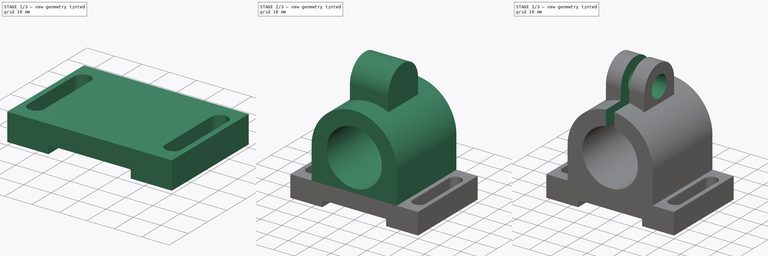
[diagram: build sequence overview — one tinted view per stage of 3, left to right]
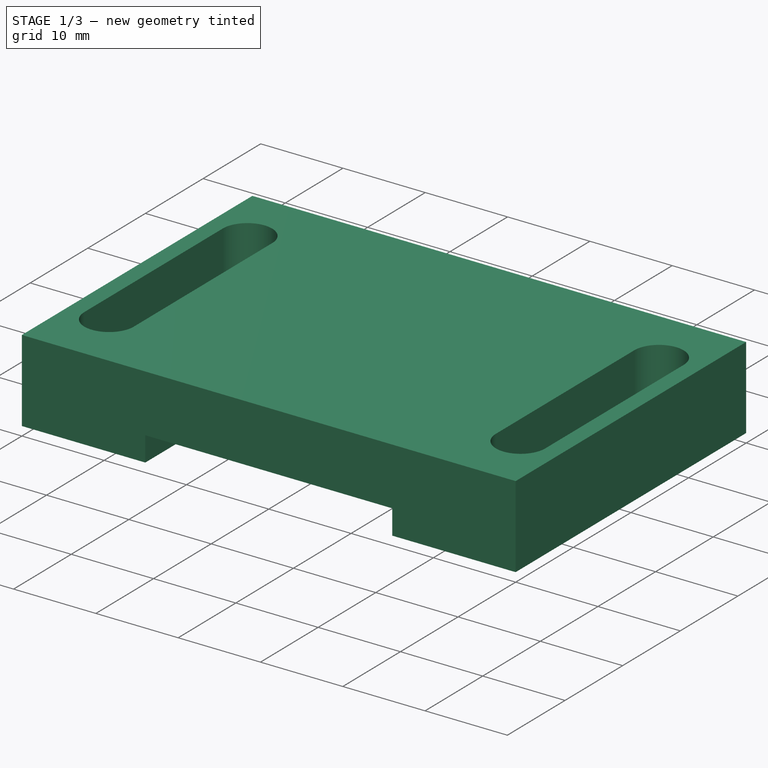
[diagram: stage 1 of 3 — iso view after this stage's code; geometry added in this stage tinted green]
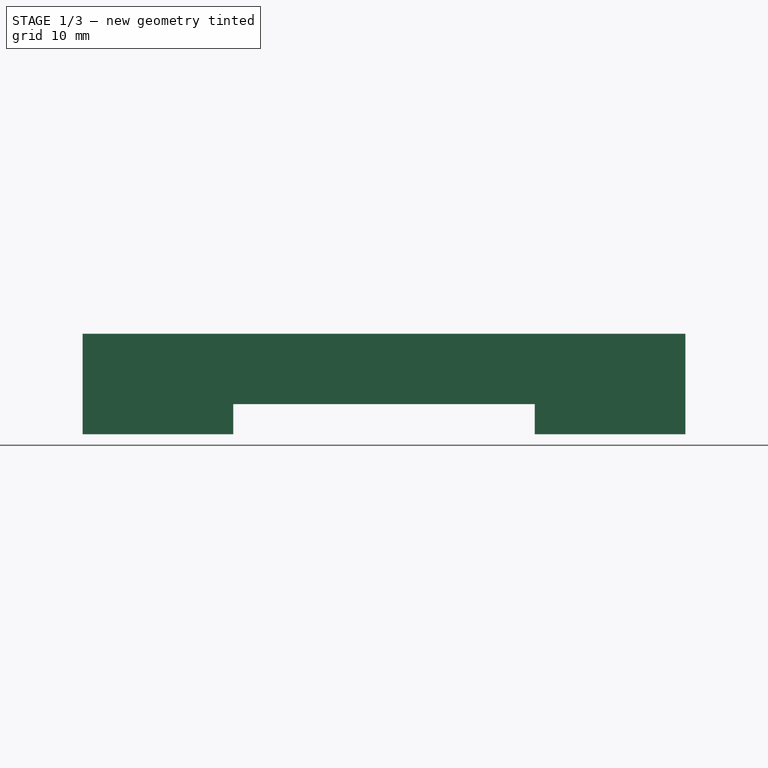
[diagram: stage 1 of 3 — front view after this stage's code; geometry added in this stage tinted green]
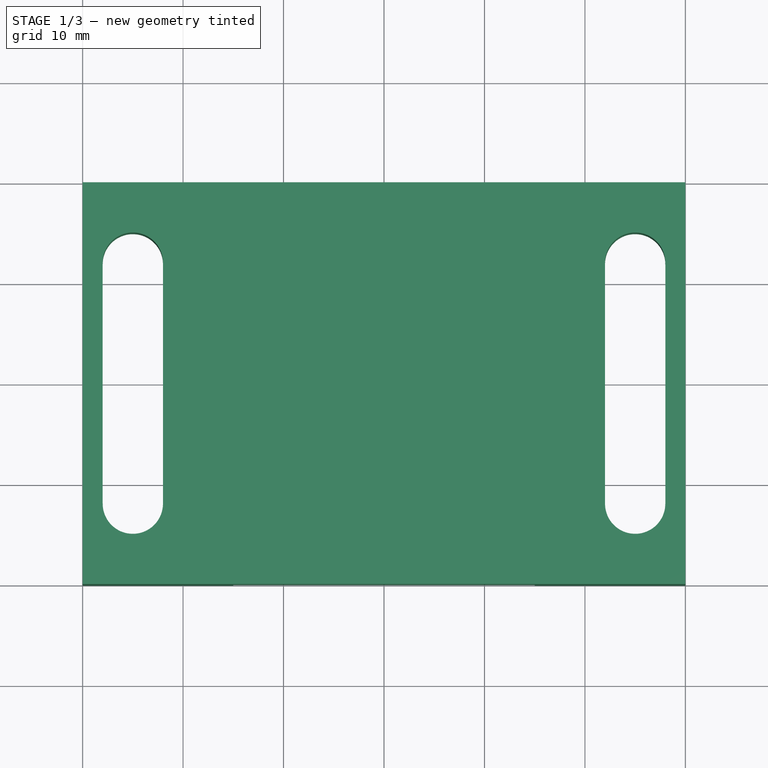
[diagram: stage 1 of 3 — top view after this stage's code; geometry added in this stage tinted green]
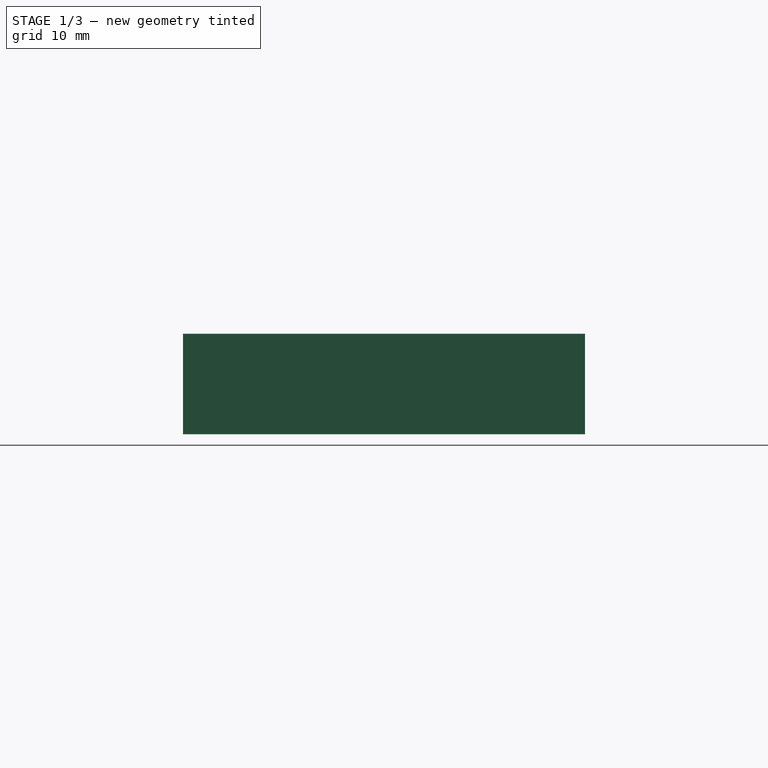
[diagram: stage 1 of 3 — right view after this stage's code; geometry added in this stage tinted green]
FCSTD DOCUMENT  (FreeCAD 0.18R4 (GitTag))
Label: FreeCadFile
License: All rights reserved
LicenseURL: http://en.wikipedia.org/wiki/All_rights_reserved
objects: Sketcher::SketchObject×8, PartDesign::Plane×6, PartDesign::Pocket×5, PartDesign::Pad×2, PartDesign::Body×1
note: 29 computed .brp shape members not serialized (recipe doc carries the construction recipe); baked Part::Feature solids carry a one-line shape summary decoded from their .brp

FEATURE [Sketcher::SketchObject] Sketch001
  MapMode = 5
  Support = -> [XY_Plane001]
  sketch-geometry (4):
    g0: LineSegment StartX=30 StartY=-20 StartZ=0 EndX=30 EndY=20 EndZ=0
    g1: LineSegment StartX=-30 StartY=20 StartZ=0 EndX=-30 EndY=-20 EndZ=0
    g2: LineSegment StartX=-30 StartY=20 StartZ=0 EndX=30 EndY=20 EndZ=0
    g3: LineSegment StartX=-30 StartY=-20 StartZ=0 EndX=30 EndY=-20 EndZ=0
  constraints (9):
    c: DistanceX(g1,g0) = 60
    c: DistanceY(g0,g0) = 40
    c: Symmetric(g1,g0,g-2)
    c: Symmetric(g1,g1,g-1)
    c: Coincident(g2,g0)
    c: Coincident(g2,g1)
    c: Coincident(g0,g3)
    c: Coincident(g1,g3)
    c: Symmetric(g0,g0,g-1)
FEATURE [PartDesign::Plane] DatumPlane
  Length = 69.798
  MapMode = 5
  Placement = pos=(0,0,0) rot=(1,0,0;3.14159rad)
  ResizeMode = 0
  Width = 49.798
FEATURE [Sketcher::SketchObject] Sketch
  MapMode = 5
  Placement = pos=(0,0,0) rot=(1,0,0;3.14159rad)
  Support = -> [DatumPlane]
  sketch-geometry (4):
    g0: LineSegment StartX=-15 StartY=-20 StartZ=0 EndX=15 EndY=-20 EndZ=0
    g1: LineSegment StartX=15 StartY=-20 StartZ=0 EndX=15 EndY=20 EndZ=0
    g2: LineSegment StartX=15 StartY=20 StartZ=0 EndX=-15 EndY=20 EndZ=0
    g3: LineSegment StartX=-15 StartY=20 StartZ=0 EndX=-15 EndY=-20 EndZ=0
  constraints (10):
    c: Coincident(g0,g1)
    c: Coincident(g1,g2)
    c: Coincident(g2,g3)
    c: Coincident(g3,g0)
    c: Horizontal(g0)
    c: Vertical(g3)
    c: DistanceX(g2,g2) = 30
    c: DistanceY(g1,g1) = 40
    c: Symmetric(g1,g0,g-1)
    c: Symmetric(g2,g1,g-2)
FEATURE [PartDesign::Pocket] Pocket
  Length = 3
  Length2 = 100
  Profile = -> Sketch
  Type = 0
FEATURE [PartDesign::Plane] DatumPlane001
  Length = 69.798
  MapMode = 5
  Placement = pos=(0,0,10) rot=(0,0,1;0rad)
  ResizeMode = 0
  Support = -> [Pocket]
  Width = 49.798
FEATURE [Sketcher::SketchObject] Sketch005
  MapMode = 5
  Placement = pos=(0,0,10) rot=(0,0,1;0rad)
  Support = -> [DatumPlane001]
  sketch-geometry (8):
    g0: LineSegment StartX=-28 StartY=12 StartZ=0 EndX=-28 EndY=-12 EndZ=0
    g1: LineSegment StartX=-22 StartY=12 StartZ=0 EndX=-22 EndY=-12 EndZ=0
    g2: ArcOfCircle CenterX=-25 CenterY=12 CenterZ=0 NormalX=0 NormalY=0 NormalZ=1 AngleXU=0 Radius=3 StartAngle=0 EndAngle=3.14159
    g3: ArcOfCircle CenterX=-25 CenterY=-12 CenterZ=0 NormalX=0 NormalY=0 NormalZ=1 AngleXU=0 Radius=3 StartAngle=3.14159 EndAngle=6.28319
    g4: LineSegment StartX=22 StartY=12 StartZ=0 EndX=22 EndY=-12 EndZ=0
    g5: LineSegment StartX=28 StartY=12 StartZ=0 EndX=28 EndY=-12 EndZ=0
    g6: ArcOfCircle CenterX=25 CenterY=12 CenterZ=0 NormalX=0 NormalY=0 NormalZ=1 AngleXU=0 Radius=3 StartAngle=2e-16 EndAngle=3.14159
    g7: ArcOfCircle CenterX=25 CenterY=-12 CenterZ=0 NormalX=0 NormalY=0 NormalZ=1 AngleXU=0 Radius=3 StartAngle=3.14159 EndAngle=6.28319
  constraints (22):
    c: DistanceY(g0,g0) = 24
    c: Symmetric(g0,g0,g-1)
    c: Equal(g0,g1) = 24
    c: DistanceX(g0,g1) = 6
    c: Symmetric(g1,g1,g-1)
    c: Tangent(g2,g0) = -1.5708
    c: Coincident(g2,g1)
    c: Coincident(g3,g0)
    c: Coincident(g3,g1)
    c: Tangent(g1,g3) = 1.5708
    c: DistanceX(g2,g-1) = 25
    c: Equal(g0,g4) = 24
    c: Equal(g4,g5) = 24
    c: Tangent(g6,g4) = -1.5708
    c: Coincident(g6,g5)
    c: Coincident(g7,g4)
    c: Coincident(g7,g5)
    c: Tangent(g5,g7) = 1.5708
    c: Symmetric(g6,g2,g-2)
    c: Symmetric(g4,g1,g-2)
    c: Symmetric(g4,g1,g-2)
    c: Symmetric(g5,g0,g-2)
FEATURE [PartDesign::Pocket] Pocket001
  BaseFeature = -> Pocket
  Length = 5
  Length2 = 100
  Profile = -> Sketch005
  Type = 1
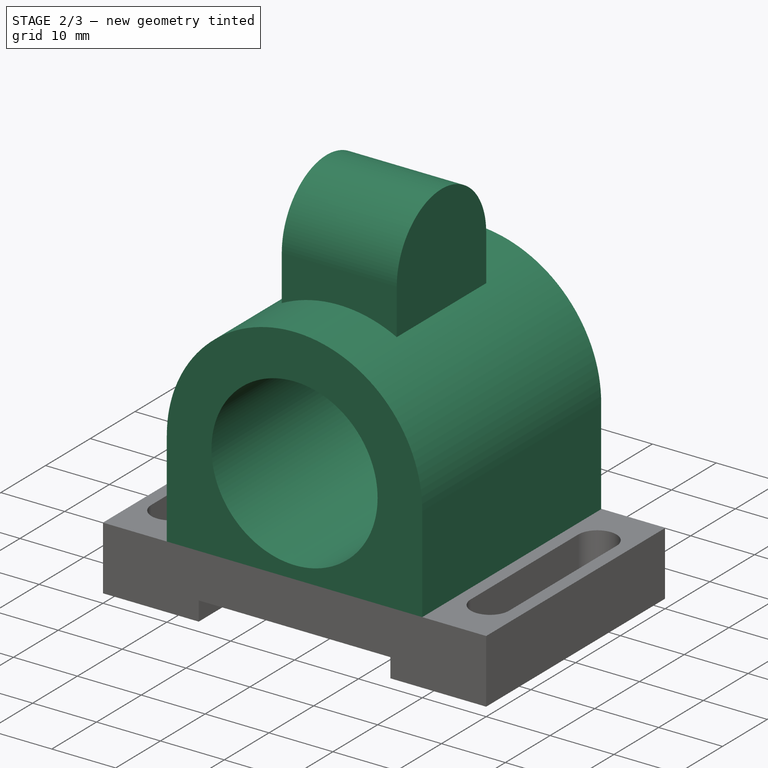
[diagram: stage 2 of 3 — iso view after this stage's code; geometry added in this stage tinted green]
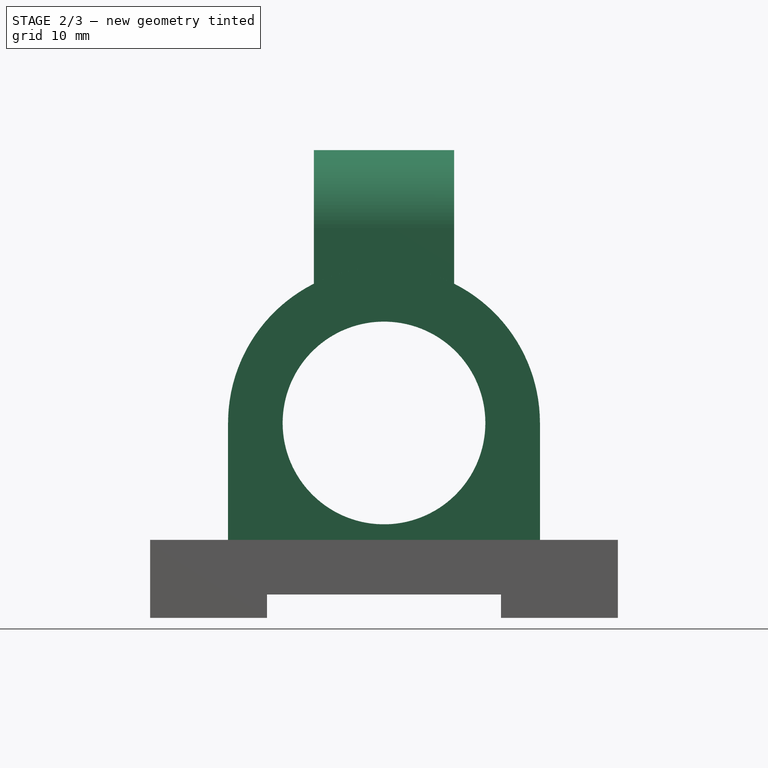
[diagram: stage 2 of 3 — front view after this stage's code; geometry added in this stage tinted green]
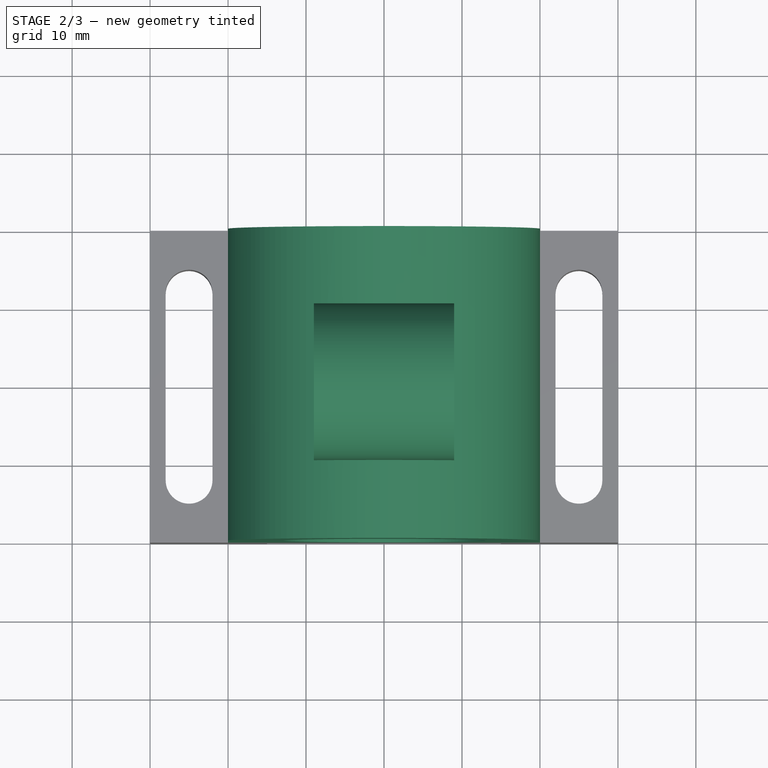
[diagram: stage 2 of 3 — top view after this stage's code; geometry added in this stage tinted green]
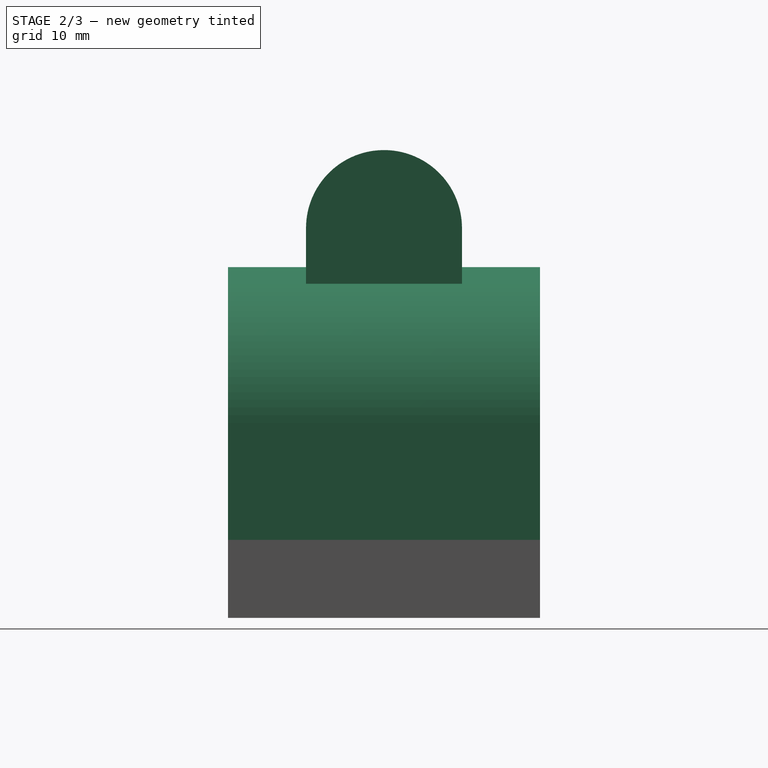
[diagram: stage 2 of 3 — right view after this stage's code; geometry added in this stage tinted green]
FEATURE [Sketcher::SketchObject] Sketch006
  MapMode = 5
  Placement = pos=(0,0,0) rot=(1,0,0;1.5708rad)
  Support = -> [XZ_Plane001]
  sketch-geometry (4):
    g0: LineSegment StartX=-20 StartY=9.99996 StartZ=0 EndX=-20 EndY=25 EndZ=0
    g1: LineSegment StartX=20 StartY=9.99996 StartZ=0 EndX=20 EndY=25 EndZ=0
    g2: ArcOfCircle CenterX=-1.3e-15 CenterY=25 CenterZ=0 NormalX=0 NormalY=0 NormalZ=1 AngleXU=0 Radius=20 StartAngle=6.28318 EndAngle=9.42478
    g3: LineSegment StartX=-20 StartY=9.99996 StartZ=0 EndX=20 EndY=9.99996 EndZ=0
  constraints (11):
    c: Parallel(g0,g1)
    c: Symmetric(g0,g1,g-2)
    c: Symmetric(g1,g0,g-2)
    c: Coincident(g2,g1)
    c: Coincident(g2,g0)
    c: Radius(g2) = 20
    c: Coincident(g3,g1)
    c: Coincident(g3,g0)
    c: DistanceY(g1,g1) = 15
    c: DistanceX(g0,g1) = 40
    c: DistanceY(g-1,g2) = 25
FEATURE [PartDesign::Pad] Pad002
  BaseFeature = -> Pocket001
  Length = 40
  Length2 = 100
  Midplane = true
  Profile = -> Sketch006
  Type = 0
FEATURE [PartDesign::Plane] DatumPlane002
  Length = 66.9282
  MapMode = 5
  Placement = pos=(0,-20,-4.4e-15) rot=(1,0,0;1.5708rad)
  ResizeMode = 0
  Support = -> [Pad002]
  Width = 26.9282
FEATURE [Sketcher::SketchObject] Sketch007
  MapMode = 5
  Placement = pos=(0,-20,-4.4e-15) rot=(1,0,0;1.5708rad)
  Support = -> [DatumPlane002]
  sketch-geometry (1):
    g0: Circle CenterX=0 CenterY=25 CenterZ=0 NormalX=0 NormalY=0 NormalZ=1 AngleXU=0 Radius=13
  constraints (3):
    c: Radius(g0) = 13
    c: DistanceY(g-1,g0) = 25
    c: PointOnObject(g0,g-2)
FEATURE [PartDesign::Pocket] Pocket002
  BaseFeature = -> Pad002
  Length = 5
  Length2 = 100
  Profile = -> Sketch007
  Type = 1
FEATURE [PartDesign::Plane] DatumPlane003
  Length = 69.798
  MapMode = 2
  ResizeMode = 0
  Support = -> [Pocket002]
  Width = 49.798
FEATURE [PartDesign::Plane] DatumPlane004
  AttachmentOffset = pos=(0,0,72) rot=(0,0,1;0rad)
  Length = 69.798
  MapMode = 5
  Placement = pos=(0,0,82) rot=(0,0,1;0rad)
  ResizeMode = 0
  Support = -> [DatumPlane001]
  Width = 49.798
FEATURE [Sketcher::SketchObject] Sketch009
  MapMode = 5
  Placement = pos=(0,0,82) rot=(0,0,1;0rad)
  Support = -> [DatumPlane004]
  sketch-geometry (4):
    g0: LineSegment StartX=-2 StartY=-20 StartZ=0 EndX=2 EndY=-20 EndZ=0
    g1: LineSegment StartX=2 StartY=-20 StartZ=0 EndX=2 EndY=20 EndZ=0
    g2: LineSegment StartX=2 StartY=20 StartZ=0 EndX=-2 EndY=20 EndZ=0
    g3: LineSegment StartX=-2 StartY=20 StartZ=0 EndX=-2 EndY=-20 EndZ=0
  constraints (10):
    c: Coincident(g0,g1)
    c: Coincident(g1,g2)
    c: Coincident(g2,g3)
    c: Coincident(g3,g0)
    c: Horizontal(g0)
    c: Vertical(g3)
    c: DistanceY(g3,g3) = 40
    c: DistanceX(g0,g0) = 4
    c: Symmetric(g1,g0,g-1)
    c: Symmetric(g2,g1,g-2)
FEATURE [Sketcher::SketchObject] Sketch010
  MapMode = 5
  Placement = pos=(0,0,0) rot=(0.57735,0.57735,0.57735;2.0944rad)
  Support = -> [YZ_Plane001]
  sketch-geometry (4):
    g0: ArcOfCircle CenterX=5e-16 CenterY=50 CenterZ=0 NormalX=0 NormalY=0 NormalZ=1 AngleXU=0 Radius=10 StartAngle=6.28318 EndAngle=9.42478
    g1: LineSegment StartX=-10 StartY=50 StartZ=0 EndX=-10 EndY=40 EndZ=0
    g2: LineSegment StartX=-10 StartY=40 StartZ=0 EndX=10 EndY=40 EndZ=0
    g3: LineSegment StartX=10 StartY=40 StartZ=0 EndX=10 EndY=50 EndZ=0
  constraints (11):
    c: Radius(g0) = 10
    c: Coincident(g1,g2)
    c: Coincident(g2,g3)
    c: DistanceX(g2,g2) = 20
    c: Symmetric(g1,g2,g-2)
    c: DistanceY(g-1,g0) = 50
    c: DistanceY(g1,g1) = 10
    c: Coincident(g1,g0)
    c: Coincident(g0,g3)
    c: Symmetric(g0,g0,g-2)
    c: DistanceX(g0,g0) = 20
FEATURE [PartDesign::Pad] Pad003
  BaseFeature = -> Pocket002
  Length = 9
  Length2 = 9
  Profile = -> Sketch010
  Type = 4
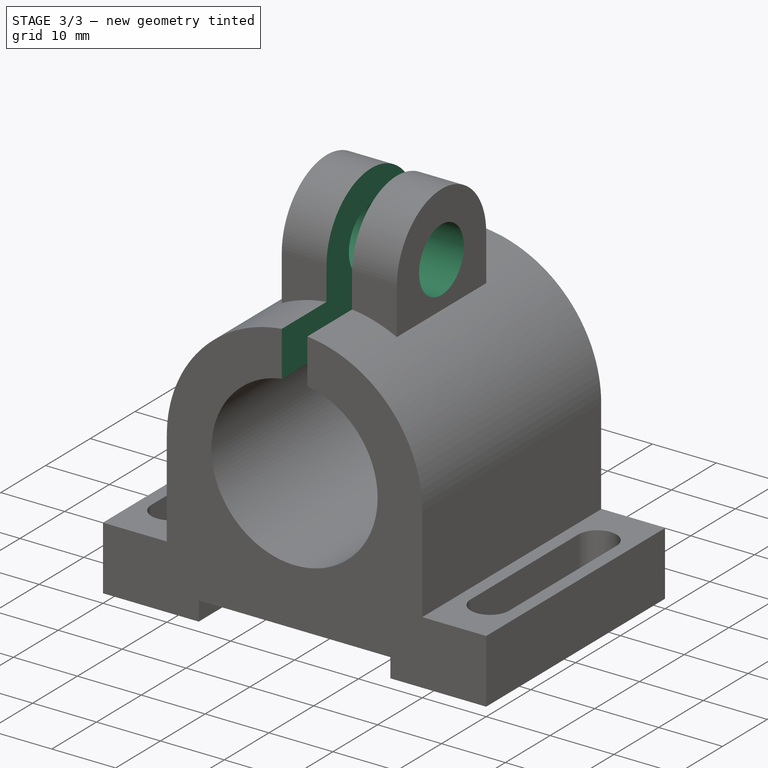
[diagram: stage 3 of 3 — iso view after this stage's code; geometry added in this stage tinted green]
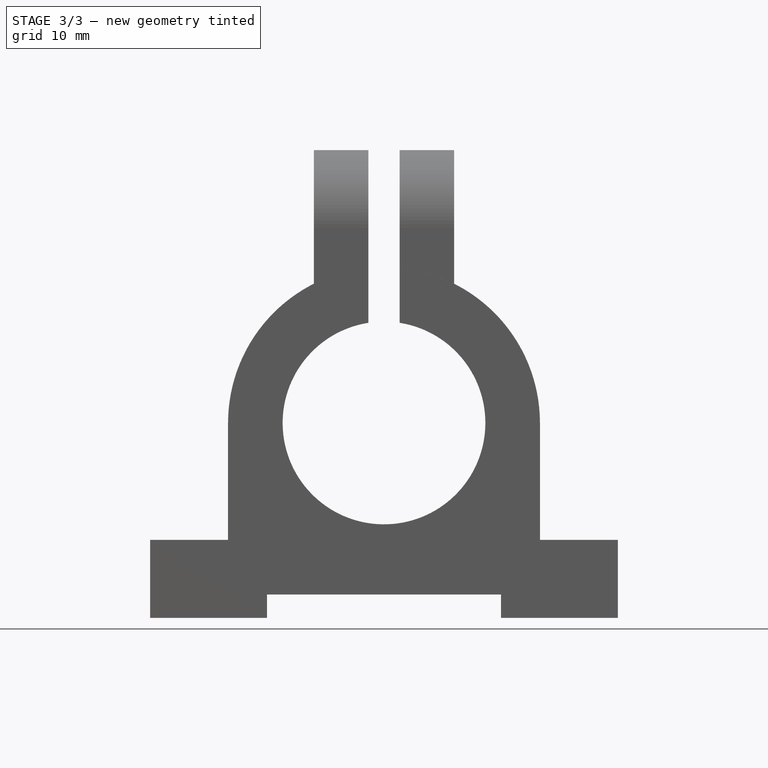
[diagram: stage 3 of 3 — front view after this stage's code; geometry added in this stage tinted green]
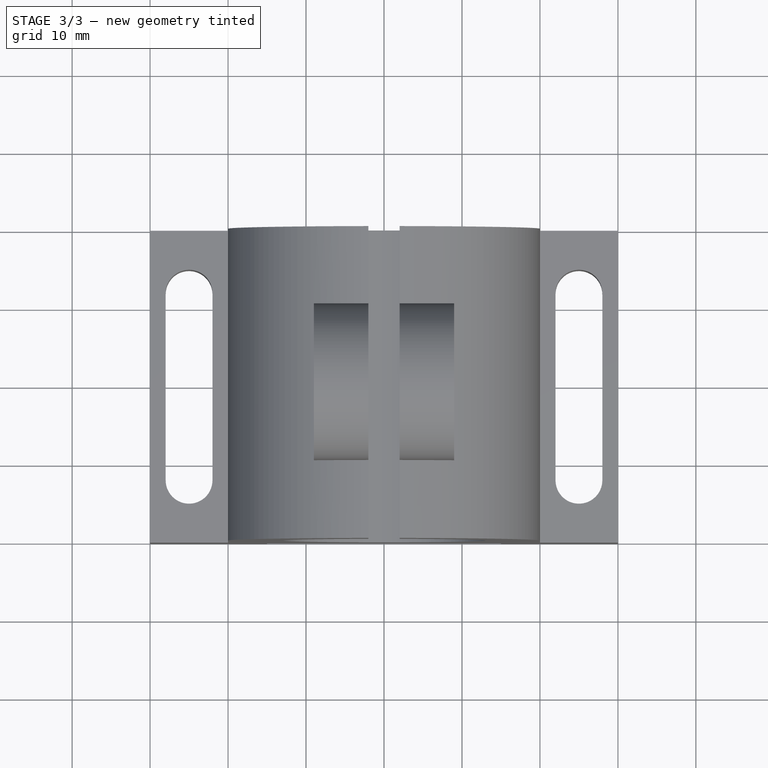
[diagram: stage 3 of 3 — top view after this stage's code; geometry added in this stage tinted green]
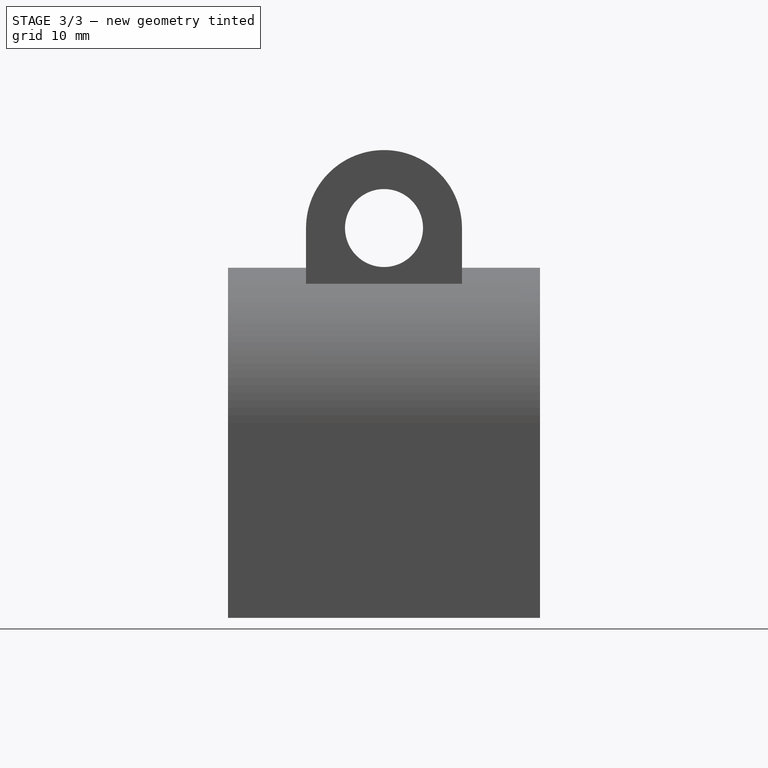
[diagram: stage 3 of 3 — right view after this stage's code; geometry added in this stage tinted green]
FEATURE [PartDesign::Pocket] Pocket003
  BaseFeature = -> Pad003
  Length = 45
  Length2 = 100
  Profile = -> Sketch009
  Type = 0
FEATURE [PartDesign::Plane] DatumPlane005
  Length = 45.6569
  MapMode = 5
  Placement = pos=(-9,2e-15,-2e-15) rot=(-0.57735,0.57735,0.57735;4.18879rad)
  ResizeMode = 0
  Support = -> [Pocket003]
  Width = 25.6569
FEATURE [Sketcher::SketchObject] Sketch011
  MapMode = 5
  Placement = pos=(-9,2e-15,-2e-15) rot=(-0.57735,0.57735,0.57735;4.18879rad)
  Support = -> [DatumPlane005]
  sketch-geometry (1):
    g0: Circle CenterX=0 CenterY=50 CenterZ=0 NormalX=0 NormalY=0 NormalZ=1 AngleXU=0 Radius=5
  constraints (3):
    c: Radius(g0) = 5
    c: PointOnObject(g0,g-2)
    c: DistanceY(g-1,g0) = 50
FEATURE [PartDesign::Pocket] Pocket004
  BaseFeature = -> Pocket003
  Length = 5
  Length2 = 100
  Profile = -> Sketch011
  Type = 1
FEATURE [PartDesign::Body] Body001
  Group = -> [Sketch001,DatumPlane,Sketch,Pocket,DatumPlane001,Sketch005,Pocket001,Pad002,Sketch006,DatumPlane002,Sketch007,Pocket002,DatumPlane003,DatumPlane004,Sketch009,Sketch010,Pad003,Pocket003,DatumPlane005,Sketch011,Pocket004]
  Origin = -> Origin001
  Tip = -> Pocket004
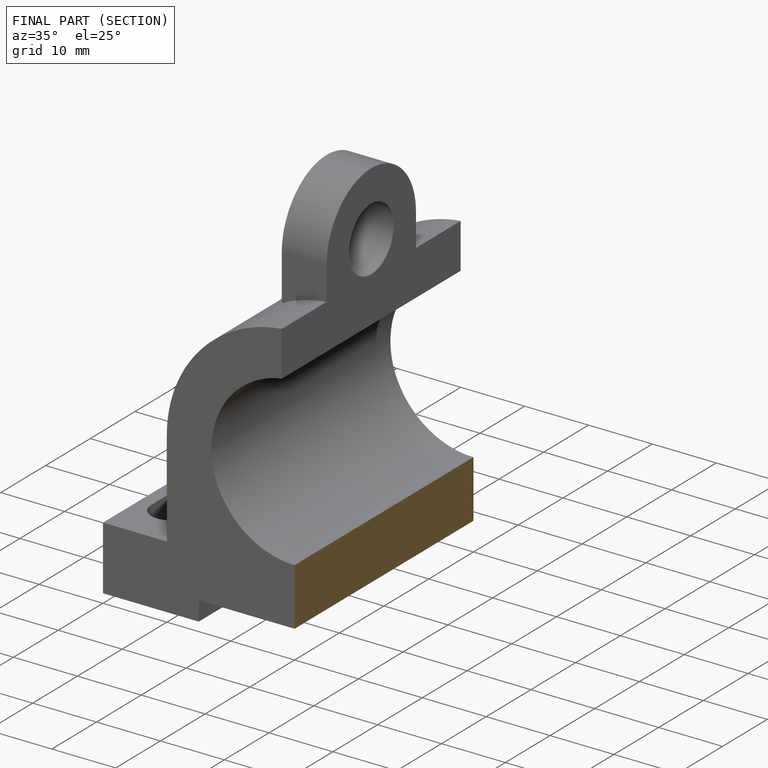
[diagram: finished part — half-section view (interior)]
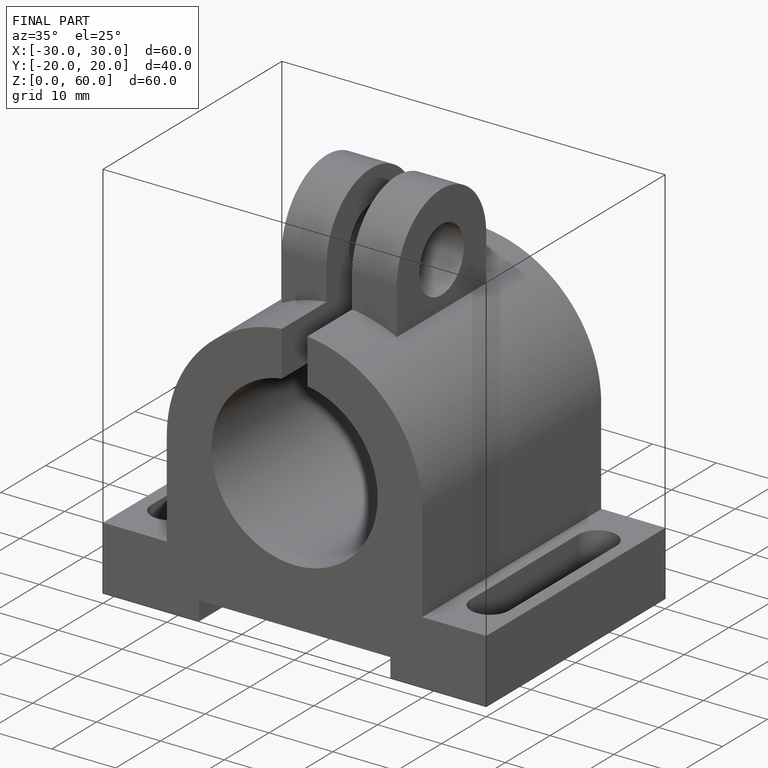
[diagram: finished part — iso view with bounding-box wireframe]
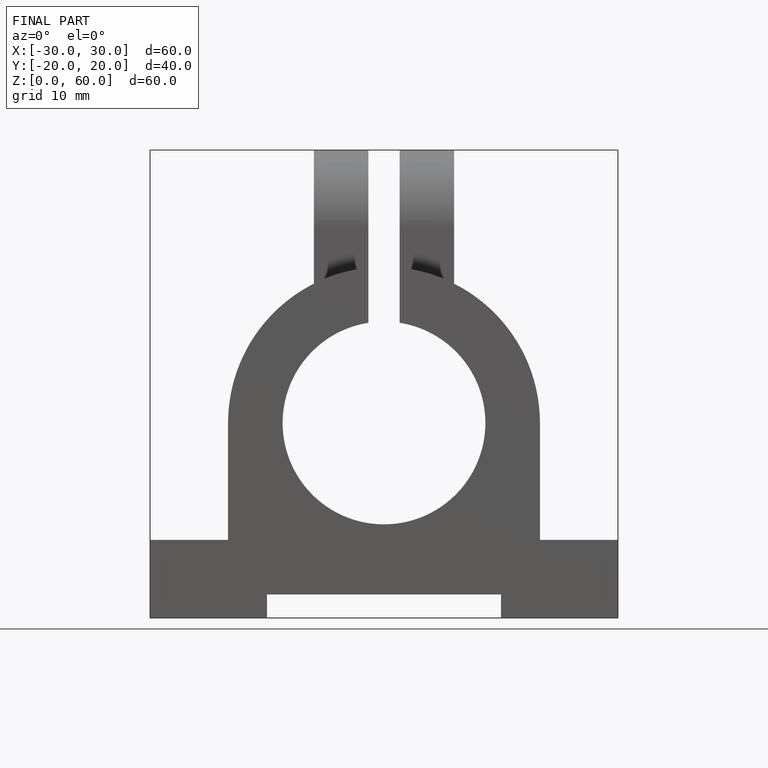
[diagram: finished part — front view with bounding-box wireframe]
